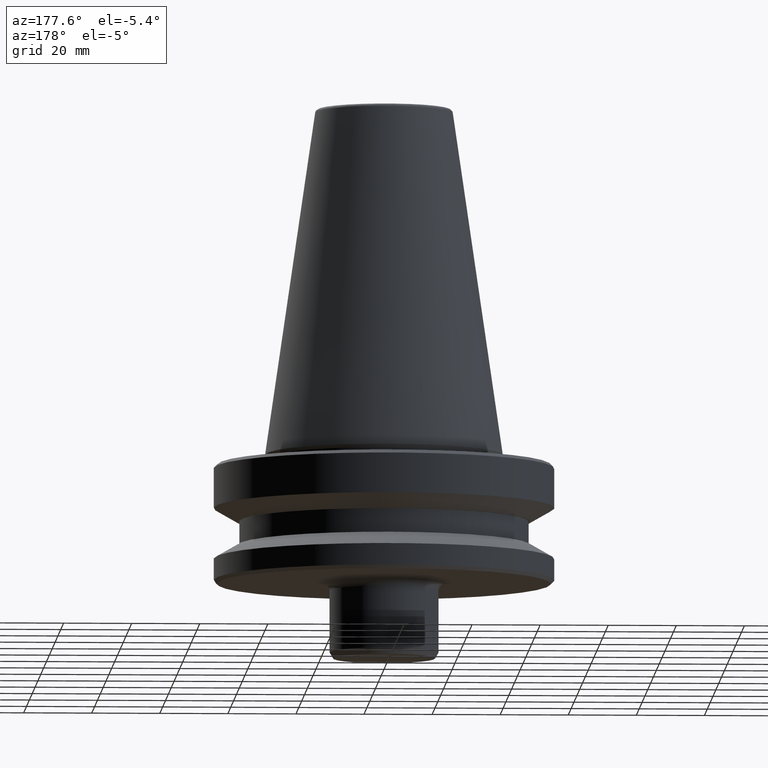
[diagram: clean part render]
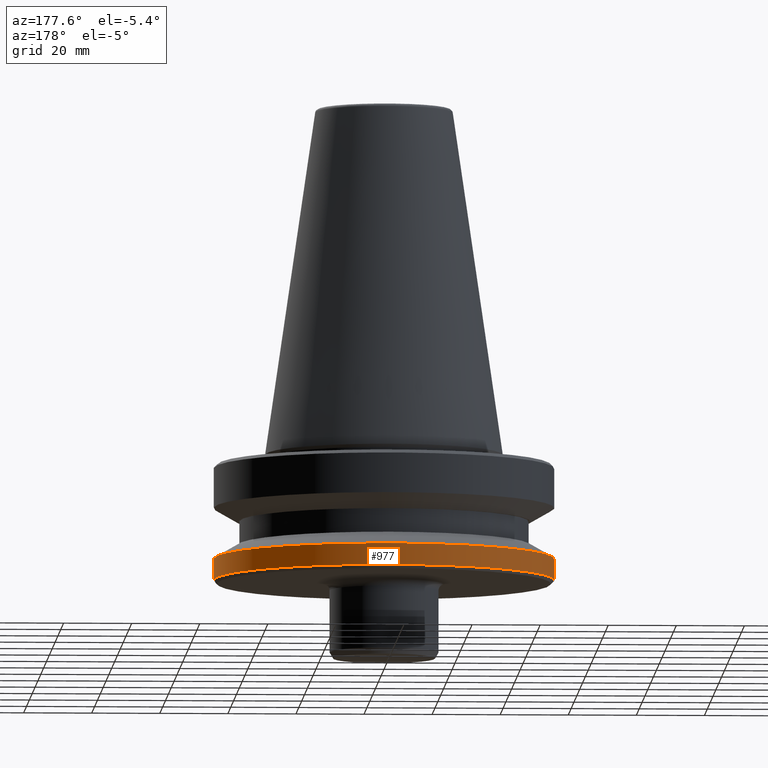
[diagram: same view with one face highlighted and labeled with its STEP entity id]
A machine part, auxiliary view. The second image highlights one B-rep face of the part: STEP entity #977.
In plain terms, the highlighted cylindrical surface (partial cylindrical patch) has radius 50 mm, axis along (-0, -0, 1).
Its self-contained STEP definition (entity closure, byte-faithful):
#39 = DIRECTION ( 'NONE',  ( -0.0000000000000000000, -0.0000000000000000000, 1.000000000000000000 ) ) ;
#47 = DIRECTION ( 'NONE',  ( 1.000000000000000000, 0.0000000000000000000, 0.0000000000000000000 ) ) ;
#57 = VERTEX_POINT ( 'NONE', #836 ) ;
#82 = VECTOR ( 'NONE', #796, 1000.000000000000000 ) ;
#116 = CIRCLE ( 'NONE', #845, 49.99999999999982200 ) ;
#118 = CYLINDRICAL_SURFACE ( 'NONE', #388, 49.99999999999982200 ) ;
#119 = ORIENTED_EDGE ( 'NONE', *, *, #370, .T. ) ;
#122 = DIRECTION ( 'NONE',  ( -0.0000000000000000000, -0.0000000000000000000, 1.000000000000000000 ) ) ;
#168 = CARTESIAN_POINT ( 'NONE',  ( -49.99999999999982200, 6.123233995736744000E-015, 108.3108805077434200 ) ) ;
#192 = EDGE_LOOP ( 'NONE', ( #717, #119, #477, #279 ) ) ;
#204 = EDGE_CURVE ( 'NONE', #956, #211, #523, .T. ) ;
#211 = VERTEX_POINT ( 'NONE', #390 ) ;
#248 = VECTOR ( 'NONE', #875, 1000.000000000000000 ) ;
#279 = ORIENTED_EDGE ( 'NONE', *, *, #507, .F. ) ;
#346 = EDGE_CURVE ( 'NONE', #57, #976, #116, .T. ) ;
#370 = EDGE_CURVE ( 'NONE', #211, #976, #458, .T. ) ;
#388 = AXIS2_PLACEMENT_3D ( 'NONE', #521, #39, #522 ) ;
#390 = CARTESIAN_POINT ( 'NONE',  ( -49.99999999999982200, 6.123233995736744000E-015, -36.99999999994106800 ) ) ;
#458 = LINE ( 'NONE', #168, #248 ) ;
#477 = ORIENTED_EDGE ( 'NONE', *, *, #346, .F. ) ;
#498 = CARTESIAN_POINT ( 'NONE',  ( 49.99999999999982200, 0.0000000000000000000, -36.99999999994106800 ) ) ;
#500 = LINE ( 'NONE', #673, #82 ) ;
#507 = EDGE_CURVE ( 'NONE', #956, #57, #500, .T. ) ;
#521 = CARTESIAN_POINT ( 'NONE',  ( 0.0000000000000000000, 0.0000000000000000000, 108.3108805077434200 ) ) ;
#522 = DIRECTION ( 'NONE',  ( 1.000000000000000000, 0.0000000000000000000, 0.0000000000000000000 ) ) ;
#523 = CIRCLE ( 'NONE', #962, 49.99999999999982200 ) ;
#673 = CARTESIAN_POINT ( 'NONE',  ( 49.99999999999982200, 0.0000000000000000000, 108.3108805077434200 ) ) ;
#703 = CARTESIAN_POINT ( 'NONE',  ( -49.99999999999982200, 6.123233995736744000E-015, -30.69977999671412400 ) ) ;
#717 = ORIENTED_EDGE ( 'NONE', *, *, #204, .T. ) ;
#728 = CARTESIAN_POINT ( 'NONE',  ( 0.0000000000000000000, 0.0000000000000000000, -30.69977999671412400 ) ) ;
#767 = DIRECTION ( 'NONE',  ( -0.0000000000000000000, -0.0000000000000000000, 1.000000000000000000 ) ) ;
#796 = DIRECTION ( 'NONE',  ( -0.0000000000000000000, -0.0000000000000000000, 1.000000000000000000 ) ) ;
#836 = CARTESIAN_POINT ( 'NONE',  ( 49.99999999999982200, 0.0000000000000000000, -30.69977999671412400 ) ) ;
#845 = AXIS2_PLACEMENT_3D ( 'NONE', #728, #122, #47 ) ;
#853 = CARTESIAN_POINT ( 'NONE',  ( 0.0000000000000000000, 0.0000000000000000000, -36.99999999994106800 ) ) ;
#875 = DIRECTION ( 'NONE',  ( -0.0000000000000000000, -0.0000000000000000000, 1.000000000000000000 ) ) ;
#934 = FACE_OUTER_BOUND ( 'NONE', #192, .T. ) ;
#956 = VERTEX_POINT ( 'NONE', #498 ) ;
#962 = AXIS2_PLACEMENT_3D ( 'NONE', #853, #767, #983 ) ;
#976 = VERTEX_POINT ( 'NONE', #703 ) ;
#977 = ADVANCED_FACE ( 'NONE', ( #934 ), #118, .T. ) ;
#983 = DIRECTION ( 'NONE',  ( 1.000000000000000000, 0.0000000000000000000, 0.0000000000000000000 ) ) ;